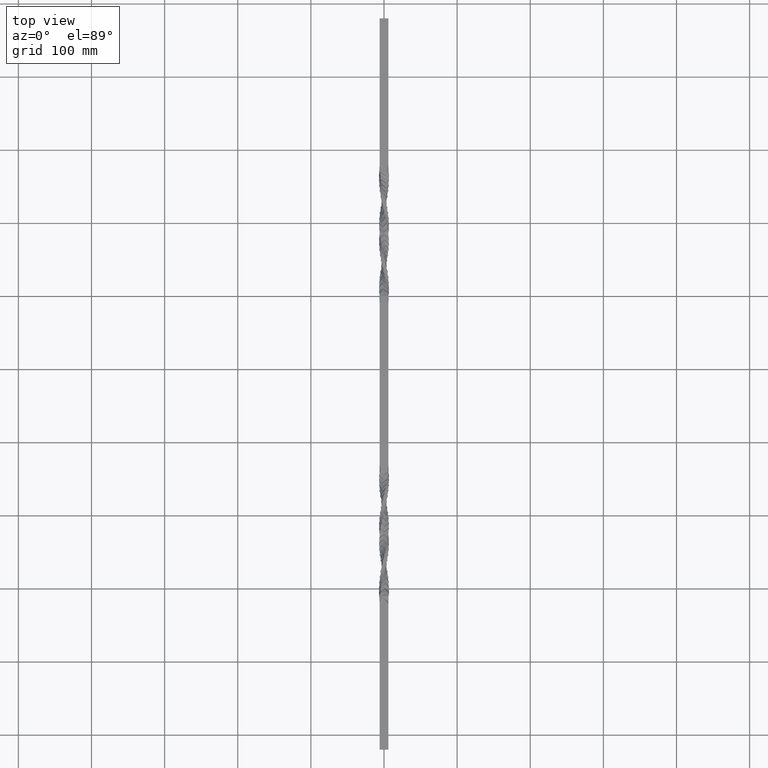
[diagram: clean part render]
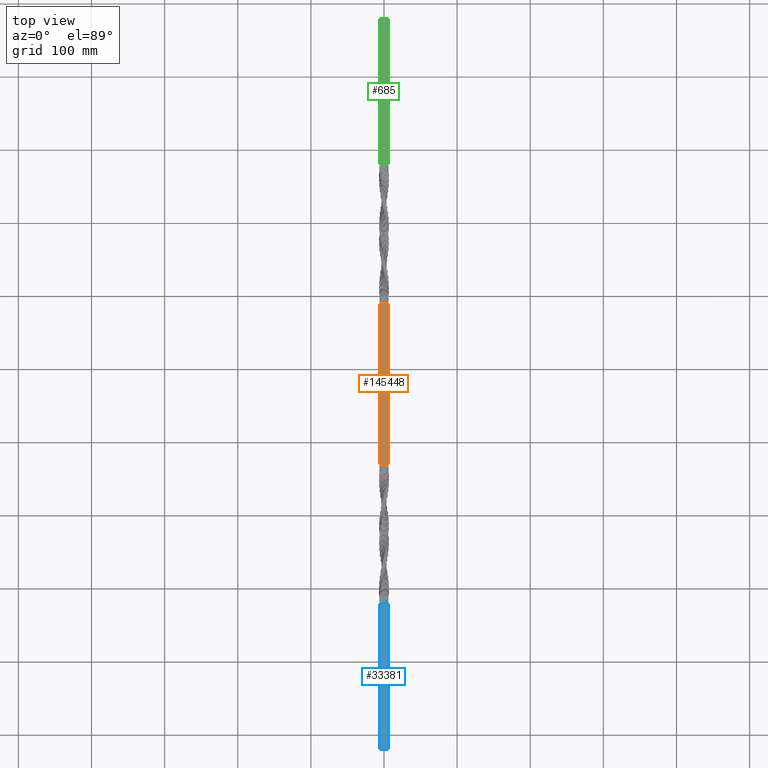
[diagram: same view with three faces highlighted in distinct colors, each labeled with its STEP entity id]
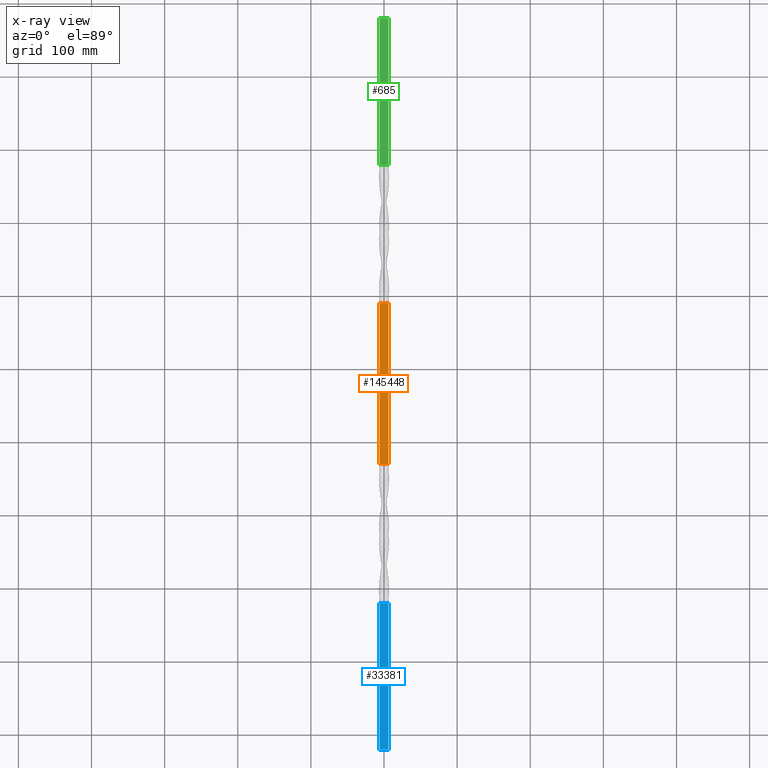
[diagram: x-ray of the same camera — body ghosted, the three highlighted faces saturated]
A machine part, top view with three faces highlighted in distinct colors.
The next image is the same camera in x-ray (body ghosted, the three faces saturated) — at least one of them is partly hidden behind the body in this view.
Their STEP definitions:

[orange] entity #145448 — the highlighted planar face has unit normal (0, 0, -1).
#14568 = LINE ( 'NONE', #41733, #147745 ) ;
#17311 = VERTEX_POINT ( 'NONE', #39703 ) ;
#18244 = VERTEX_POINT ( 'NONE', #148606 ) ;
#28459 = DIRECTION ( 'NONE',  ( 1.000000000000000000, 0.000000000000000000, 0.000000000000000000 ) ) ;
#28973 = EDGE_CURVE ( 'NONE', #17311, #112731, #122487, .T. ) ;
#33014 = EDGE_CURVE ( 'NONE', #154332, #112731, #14568, .T. ) ;
#39703 = CARTESIAN_POINT ( 'NONE',  ( 5.999999999999988454, 390.0000000000000000, 5.999999999999991118 ) ) ;
#40928 = DIRECTION ( 'NONE',  ( -1.000000000000000000, 0.000000000000000000, -0.000000000000000000 ) ) ;
#41501 = VECTOR ( 'NONE', #28459, 1000.000000000000000 ) ;
#41733 = CARTESIAN_POINT ( 'NONE',  ( -5.999999999999988454, 170.0000000000000000, 6.000000000000008882 ) ) ;
#44260 = DIRECTION ( 'NONE',  ( -0.000000000000000000, -1.000000000000000000, -0.000000000000000000 ) ) ;
#44992 = ORIENTED_EDGE ( 'NONE', *, *, #47807, .T. ) ;
#47807 = EDGE_CURVE ( 'NONE', #18244, #154332, #76796, .T. ) ;
#49906 = VECTOR ( 'NONE', #44260, 1000.000000000000000 ) ;
#63102 = VECTOR ( 'NONE', #145317, 1000.000000000000000 ) ;
#76796 = LINE ( 'NONE', #131143, #63102 ) ;
#77368 = ORIENTED_EDGE ( 'NONE', *, *, #28973, .F. ) ;
#78688 = DIRECTION ( 'NONE',  ( 0.000000000000000000, 0.000000000000000000, -1.000000000000000000 ) ) ;
#88606 = EDGE_LOOP ( 'NONE', ( #114046, #77368, #97393, #44992 ) ) ;
#93207 = DIRECTION ( 'NONE',  ( 1.000000000000000000, 0.000000000000000000, 0.000000000000000000 ) ) ;
#93656 = CARTESIAN_POINT ( 'NONE',  ( -5.999999999999988454, 170.0000000000000000, 6.000000000000008882 ) ) ;
#97393 = ORIENTED_EDGE ( 'NONE', *, *, #116269, .F. ) ;
#98811 = CARTESIAN_POINT ( 'NONE',  ( -5.999999999999988454, 390.0000000000000000, 6.000000000000008882 ) ) ;
#110508 = CARTESIAN_POINT ( 'NONE',  ( 5.999999999999988454, 170.0000000000000000, 5.999999999999991118 ) ) ;
#112731 = VERTEX_POINT ( 'NONE', #110508 ) ;
#114046 = ORIENTED_EDGE ( 'NONE', *, *, #33014, .T. ) ;
#116269 = EDGE_CURVE ( 'NONE', #18244, #17311, #147278, .T. ) ;
#122487 = LINE ( 'NONE', #133416, #49906 ) ;
#126930 = FACE_OUTER_BOUND ( 'NONE', #88606, .T. ) ;
#127947 = CARTESIAN_POINT ( 'NONE',  ( 5.999999999999988454, 280.0000000000000000, 5.999999999999991118 ) ) ;
#131143 = CARTESIAN_POINT ( 'NONE',  ( -5.999999999999988454, 280.0000000000000000, 5.999999999999991118 ) ) ;
#133416 = CARTESIAN_POINT ( 'NONE',  ( 5.999999999999988454, 280.0000000000000000, 5.999999999999991118 ) ) ;
#141085 = PLANE ( 'NONE',  #144840 ) ;
#144840 = AXIS2_PLACEMENT_3D ( 'NONE', #127947, #78688, #40928 ) ;
#145317 = DIRECTION ( 'NONE',  ( -0.000000000000000000, -1.000000000000000000, -0.000000000000000000 ) ) ;
#145448 = ADVANCED_FACE ( 'NONE', ( #126930 ), #141085, .F. ) ;
#147278 = LINE ( 'NONE', #98811, #41501 ) ;
#147745 = VECTOR ( 'NONE', #93207, 1000.000000000000000 ) ;
#148606 = CARTESIAN_POINT ( 'NONE',  ( -5.999999999999988454, 390.0000000000000000, 6.000000000000008882 ) ) ;
#154332 = VERTEX_POINT ( 'NONE', #93656 ) ;

[blue] entity #33381 — the highlighted planar face has unit normal (0, 0, -1).
#255 = CARTESIAN_POINT ( 'NONE',  ( -5.999999999999997335, -220.0000000000000000, 6.000000000000000000 ) ) ;
#2855 = EDGE_CURVE ( 'NONE', #133873, #25325, #5751, .T. ) ;
#5751 = LINE ( 'NONE', #255, #62410 ) ;
#12210 = VECTOR ( 'NONE', #118360, 1000.000000000000000 ) ;
#23676 = VECTOR ( 'NONE', #56967, 1000.000000000000000 ) ;
#25325 = VERTEX_POINT ( 'NONE', #32951 ) ;
#26265 = PLANE ( 'NONE',  #149581 ) ;
#31910 = DIRECTION ( 'NONE',  ( -0.000000000000000000, 1.000000000000000000, -0.000000000000000000 ) ) ;
#32951 = CARTESIAN_POINT ( 'NONE',  ( -6.000000000000002665, -20.00000000000000000, 5.999999999999997335 ) ) ;
#33381 = ADVANCED_FACE ( 'NONE', ( #71257 ), #26265, .F. ) ;
#43190 = VERTEX_POINT ( 'NONE', #124703 ) ;
#43332 = CARTESIAN_POINT ( 'NONE',  ( -5.999999999999997335, -220.0000000000000000, 6.000000000000000000 ) ) ;
#44825 = EDGE_CURVE ( 'NONE', #43190, #133873, #155303, .T. ) ;
#56226 = ORIENTED_EDGE ( 'NONE', *, *, #114089, .T. ) ;
#56967 = DIRECTION ( 'NONE',  ( -0.000000000000000000, 1.000000000000000000, -0.000000000000000000 ) ) ;
#57003 = EDGE_CURVE ( 'NONE', #43190, #64202, #68799, .T. ) ;
#58806 = CARTESIAN_POINT ( 'NONE',  ( -6.000000000000002665, -20.00000000000000000, 5.999999999999997335 ) ) ;
#62410 = VECTOR ( 'NONE', #31910, 1000.000000000000000 ) ;
#64202 = VERTEX_POINT ( 'NONE', #81024 ) ;
#68799 = LINE ( 'NONE', #71660, #23676 ) ;
#71257 = FACE_OUTER_BOUND ( 'NONE', #146618, .T. ) ;
#71660 = CARTESIAN_POINT ( 'NONE',  ( 5.999999999999997335, -220.0000000000000000, 6.000000000000000000 ) ) ;
#81024 = CARTESIAN_POINT ( 'NONE',  ( 5.999999999999997335, -20.00000000000000000, 6.000000000000000000 ) ) ;
#98366 = LINE ( 'NONE', #58806, #149176 ) ;
#99378 = ORIENTED_EDGE ( 'NONE', *, *, #57003, .T. ) ;
#114089 = EDGE_CURVE ( 'NONE', #64202, #25325, #98366, .T. ) ;
#116196 = CARTESIAN_POINT ( 'NONE',  ( -5.999999999999997335, -220.0000000000000000, 6.000000000000000000 ) ) ;
#118360 = DIRECTION ( 'NONE',  ( -1.000000000000000000, -0.000000000000000000, -0.000000000000000000 ) ) ;
#120597 = ORIENTED_EDGE ( 'NONE', *, *, #44825, .F. ) ;
#124703 = CARTESIAN_POINT ( 'NONE',  ( 5.999999999999997335, -220.0000000000000000, 6.000000000000000000 ) ) ;
#126626 = ORIENTED_EDGE ( 'NONE', *, *, #2855, .F. ) ;
#130244 = DIRECTION ( 'NONE',  ( -1.000000000000000000, 0.000000000000000000, -0.000000000000000000 ) ) ;
#130795 = DIRECTION ( 'NONE',  ( 0.000000000000000000, 0.000000000000000000, -1.000000000000000000 ) ) ;
#133269 = DIRECTION ( 'NONE',  ( -1.000000000000000000, -0.000000000000000000, -2.168404344971008868E-16 ) ) ;
#133873 = VERTEX_POINT ( 'NONE', #116196 ) ;
#142832 = CARTESIAN_POINT ( 'NONE',  ( -5.999999999999997335, -220.0000000000000000, 6.000000000000000000 ) ) ;
#146618 = EDGE_LOOP ( 'NONE', ( #56226, #126626, #120597, #99378 ) ) ;
#149176 = VECTOR ( 'NONE', #133269, 1000.000000000000000 ) ;
#149581 = AXIS2_PLACEMENT_3D ( 'NONE', #142832, #130795, #130244 ) ;
#155303 = LINE ( 'NONE', #43332, #12210 ) ;

[green] entity #685 — the highlighted planar face has unit normal (-0, 0, -1).
#685 = ADVANCED_FACE ( 'NONE', ( #42951 ), #107827, .F. ) ;
#8167 = LINE ( 'NONE', #53844, #78707 ) ;
#14375 = DIRECTION ( 'NONE',  ( 0.000000000000000000, -1.000000000000000000, 0.000000000000000000 ) ) ;
#17917 = VERTEX_POINT ( 'NONE', #134045 ) ;
#18890 = VECTOR ( 'NONE', #42506, 1000.000000000000000 ) ;
#19927 = LINE ( 'NONE', #55308, #96305 ) ;
#23990 = VECTOR ( 'NONE', #14375, 1000.000000000000000 ) ;
#24216 = CARTESIAN_POINT ( 'NONE',  ( 5.999999999999997335, 780.0000000000000000, 6.000000000000000000 ) ) ;
#42235 = ORIENTED_EDGE ( 'NONE', *, *, #97110, .F. ) ;
#42506 = DIRECTION ( 'NONE',  ( -1.000000000000000000, 0.000000000000000000, -2.168404344971008868E-16 ) ) ;
#42951 = FACE_OUTER_BOUND ( 'NONE', #81320, .T. ) ;
#44107 = CARTESIAN_POINT ( 'NONE',  ( -6.000000000000002665, 580.0000000000001137, 5.999999999999997335 ) ) ;
#45551 = EDGE_CURVE ( 'NONE', #120409, #17917, #108225, .T. ) ;
#51453 = VERTEX_POINT ( 'NONE', #85578 ) ;
#53410 = EDGE_CURVE ( 'NONE', #73247, #51453, #19927, .T. ) ;
#53844 = CARTESIAN_POINT ( 'NONE',  ( -5.999999999999997335, 780.0000000000000000, 6.000000000000000000 ) ) ;
#53871 = EDGE_CURVE ( 'NONE', #120409, #73247, #8167, .T. ) ;
#55308 = CARTESIAN_POINT ( 'NONE',  ( -5.999999999999997335, 780.0000000000000000, 6.000000000000000000 ) ) ;
#69809 = ORIENTED_EDGE ( 'NONE', *, *, #45551, .F. ) ;
#73247 = VERTEX_POINT ( 'NONE', #115893 ) ;
#78707 = VECTOR ( 'NONE', #116273, 1000.000000000000000 ) ;
#79465 = ORIENTED_EDGE ( 'NONE', *, *, #53871, .T. ) ;
#81320 = EDGE_LOOP ( 'NONE', ( #42235, #69809, #79465, #159012 ) ) ;
#85578 = CARTESIAN_POINT ( 'NONE',  ( -6.000000000000002665, 580.0000000000001137, 5.999999999999997335 ) ) ;
#96305 = VECTOR ( 'NONE', #119888, 1000.000000000000000 ) ;
#97110 = EDGE_CURVE ( 'NONE', #17917, #51453, #103109, .T. ) ;
#103109 = LINE ( 'NONE', #44107, #18890 ) ;
#107827 = PLANE ( 'NONE',  #117796 ) ;
#108225 = LINE ( 'NONE', #153918, #23990 ) ;
#108349 = DIRECTION ( 'NONE',  ( -0.000000000000000000, 0.000000000000000000, -1.000000000000000000 ) ) ;
#115893 = CARTESIAN_POINT ( 'NONE',  ( -5.999999999999997335, 780.0000000000000000, 6.000000000000000000 ) ) ;
#116273 = DIRECTION ( 'NONE',  ( -1.000000000000000000, 0.000000000000000000, -0.000000000000000000 ) ) ;
#117796 = AXIS2_PLACEMENT_3D ( 'NONE', #159697, #108349, #147133 ) ;
#119888 = DIRECTION ( 'NONE',  ( 0.000000000000000000, -1.000000000000000000, 0.000000000000000000 ) ) ;
#120409 = VERTEX_POINT ( 'NONE', #24216 ) ;
#134045 = CARTESIAN_POINT ( 'NONE',  ( 5.999999999999997335, 580.0000000000001137, 6.000000000000000000 ) ) ;
#147133 = DIRECTION ( 'NONE',  ( -1.000000000000000000, -0.000000000000000000, 0.000000000000000000 ) ) ;
#153918 = CARTESIAN_POINT ( 'NONE',  ( 5.999999999999997335, 780.0000000000000000, 6.000000000000000000 ) ) ;
#159012 = ORIENTED_EDGE ( 'NONE', *, *, #53410, .T. ) ;
#159697 = CARTESIAN_POINT ( 'NONE',  ( -5.999999999999997335, 780.0000000000000000, 6.000000000000000000 ) ) ;